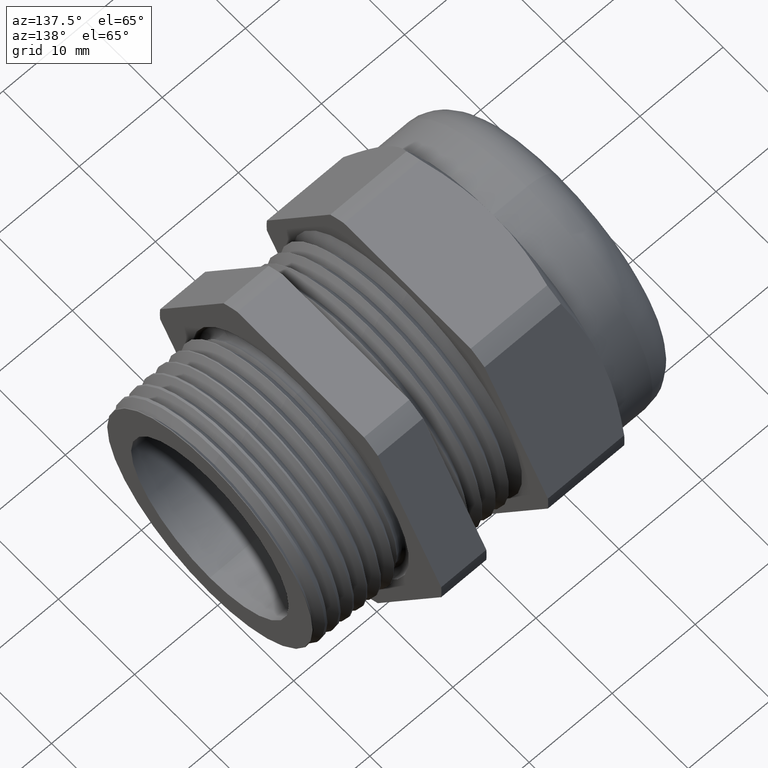
[diagram: clean part render]
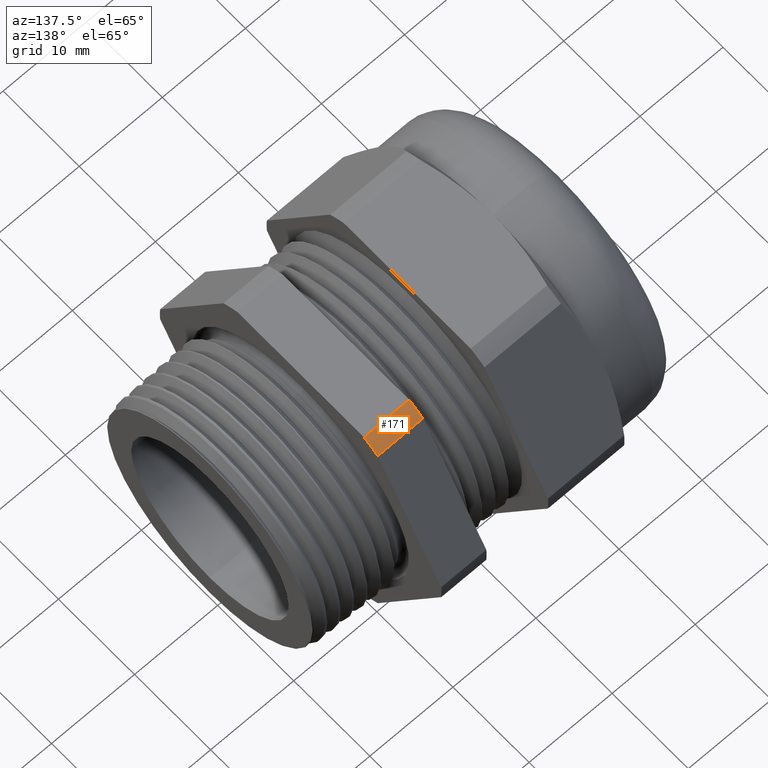
[diagram: same view with one face highlighted and labeled with its STEP entity id]
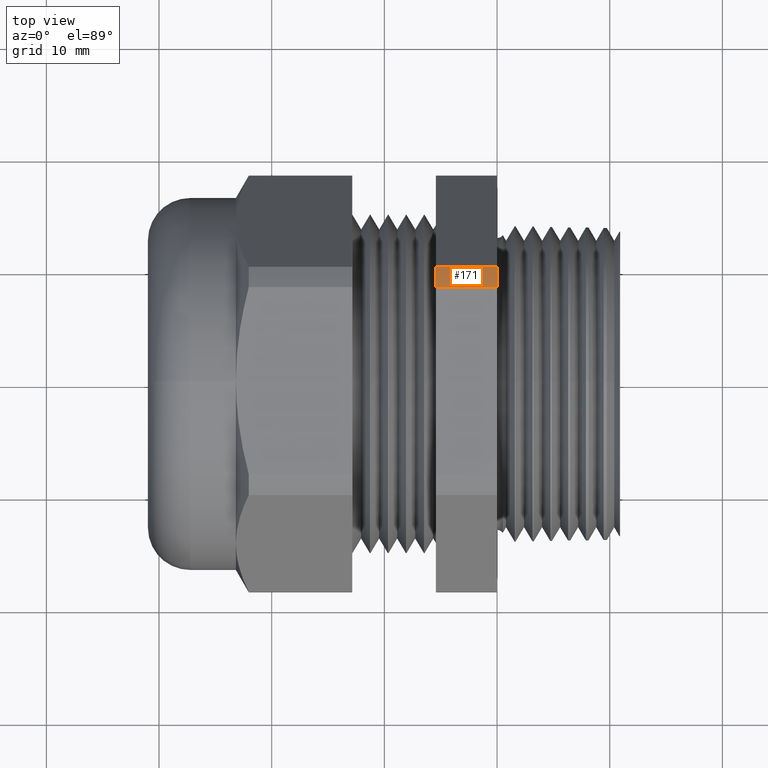
[diagram: same view with one face highlighted and labeled with its STEP entity id]
A machine part, auxiliary view. The second image highlights one B-rep face of the part: STEP entity #171.
A second angle (top view) of the same face is appended — the face is thin or edge-on in the first view.
In plain terms, the highlighted cylindrical surface (partial cylindrical patch) has radius 18.4912 mm, axis along (-1, 0, 0).
Its self-contained STEP definition (entity closure, byte-faithful):
#105 = VERTEX_POINT ( 'NONE', #1324 ) ;
#107 = EDGE_CURVE ( 'NONE', #108, #105, #1323, .T. ) ;
#108 = VERTEX_POINT ( 'NONE', #1318 ) ;
#171 = ADVANCED_FACE ( 'NONE', ( #1468 ), #1466, .T. ) ;
#172 = EDGE_LOOP ( 'NONE', ( #173, #1035, #955, #957 ) ) ;
#173 = ORIENTED_EDGE ( 'NONE', *, *, #174, .F. ) ;
#174 = EDGE_CURVE ( 'NONE', #767, #105, #1467, .T. ) ;
#767 = VERTEX_POINT ( 'NONE', #2442 ) ;
#955 = ORIENTED_EDGE ( 'NONE', *, *, #956, .T. ) ;
#956 = EDGE_CURVE ( 'NONE', #1037, #108, #2824, .T. ) ;
#957 = ORIENTED_EDGE ( 'NONE', *, *, #107, .T. ) ;
#1035 = ORIENTED_EDGE ( 'NONE', *, *, #1036, .F. ) ;
#1036 = EDGE_CURVE ( 'NONE', #1037, #767, #2938, .T. ) ;
#1037 = VERTEX_POINT ( 'NONE', #2933 ) ;
#1318 = CARTESIAN_POINT ( 'NONE',  ( 0.0000000000000000000, 0.3278475255358814200, 0.6499999999999998000 ) ) ;
#1319 = DIRECTION ( 'NONE',  ( 0.0000000000000000000, 0.0000000000000000000, 1.000000000000000000 ) ) ;
#1320 = DIRECTION ( 'NONE',  ( -1.000000000000000000, 0.0000000000000000000, 0.0000000000000000000 ) ) ;
#1321 = CARTESIAN_POINT ( 'NONE',  ( 0.0000000000000000000, 0.0000000000000000000, 0.0000000000000000000 ) ) ;
#1322 = AXIS2_PLACEMENT_3D ( 'NONE', #1321, #1320, #1319 ) ;
#1323 = CIRCLE ( 'NONE', #1322, 0.7280000000000000900 ) ;
#1324 = CARTESIAN_POINT ( 'NONE',  ( 0.0000000000000000000, 0.3989927496919443200, 0.6089242856819405700 ) ) ;
#1459 = DIRECTION ( 'NONE',  ( 1.000000000000000000, 0.0000000000000000000, 0.0000000000000000000 ) ) ;
#1460 = VECTOR ( 'NONE', #1459, 39.37007874015748100 ) ;
#1461 = CARTESIAN_POINT ( 'NONE',  ( -2.992185896283379200, 0.3989927496919443200, 0.6089242856819405700 ) ) ;
#1462 = DIRECTION ( 'NONE',  ( 0.0000000000000000000, 0.0000000000000000000, 1.000000000000000000 ) ) ;
#1463 = DIRECTION ( 'NONE',  ( -1.000000000000000000, 0.0000000000000000000, 0.0000000000000000000 ) ) ;
#1464 = CARTESIAN_POINT ( 'NONE',  ( -0.7238591030180623300, 0.0000000000000000000, 0.0000000000000000000 ) ) ;
#1465 = AXIS2_PLACEMENT_3D ( 'NONE', #1464, #1463, #1462 ) ;
#1466 = CYLINDRICAL_SURFACE ( 'NONE', #1465, 0.7280000000000000900 ) ;
#1467 = LINE ( 'NONE', #1461, #1460 ) ;
#1468 = FACE_OUTER_BOUND ( 'NONE', #172, .T. ) ;
#2442 = CARTESIAN_POINT ( 'NONE',  ( -0.2139303482587066300, 0.3989927496919443200, 0.6089242856819405700 ) ) ;
#2821 = DIRECTION ( 'NONE',  ( 1.000000000000000000, 0.0000000000000000000, 0.0000000000000000000 ) ) ;
#2822 = VECTOR ( 'NONE', #2821, 39.37007874015748100 ) ;
#2823 = CARTESIAN_POINT ( 'NONE',  ( -2.992185896283379200, 0.3278475255358814200, 0.6499999999999998000 ) ) ;
#2824 = LINE ( 'NONE', #2823, #2822 ) ;
#2933 = CARTESIAN_POINT ( 'NONE',  ( -0.2139303482587064900, 0.3278475255358812600, 0.6499999999999999100 ) ) ;
#2934 = DIRECTION ( 'NONE',  ( 0.0000000000000000000, 0.0000000000000000000, 1.000000000000000000 ) ) ;
#2935 = DIRECTION ( 'NONE',  ( -1.000000000000000000, 0.0000000000000000000, 0.0000000000000000000 ) ) ;
#2936 = CARTESIAN_POINT ( 'NONE',  ( -0.2139303482587064900, 0.0000000000000000000, 0.0000000000000000000 ) ) ;
#2937 = AXIS2_PLACEMENT_3D ( 'NONE', #2936, #2935, #2934 ) ;
#2938 = CIRCLE ( 'NONE', #2937, 0.7280000000000000900 ) ;